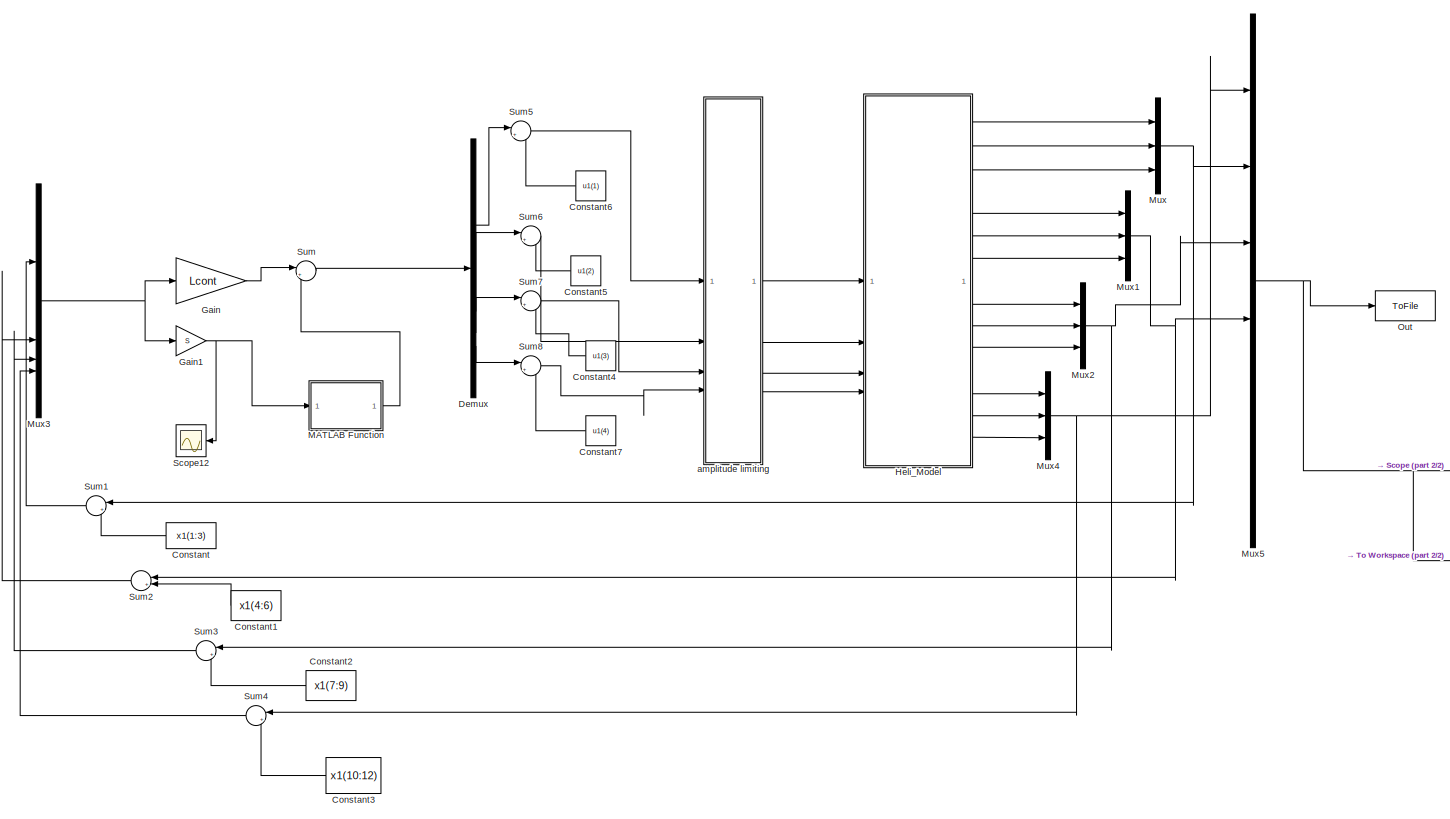
[diagram: root canvas - part 1/2, most of the canvas]
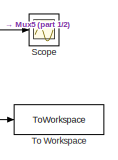
[diagram: root canvas - part 2/2, middle right region]
MODEL slx_30b38806697f
KIND model
CONFIG AbsTol = auto
CONFIG EnableMultiTasking = off
CONFIG FixedStep = auto
CONFIG MaxStep = auto
CONFIG MinStep = auto
CONFIG RelTol = 1e-3
CONFIG SampleTimeConstraint = Unconstrained
CONFIG SolverName = VariableStepAuto
CONFIG StartTime = 0.0
CONFIG StopTime = 80
BLOCK [Constant] Constant
  Value = x1(1:3)
BLOCK [Constant] Constant1
  Value = x1(4:6)
BLOCK [Constant] Constant2
  Value = x1(7:9)
BLOCK [Constant] Constant3
  Value = x1(10:12)
BLOCK [Constant] Constant4
  Value = u1(3)
BLOCK [Constant] Constant5
  Value = u1(2)
BLOCK [Constant] Constant6
  Value = u1(1)
BLOCK [Constant] Constant7
  Value = u1(4)
BLOCK [Demux] Demux
BLOCK [Gain] Gain
  Gain = Lcont
  Multiplication = Matrix(K*u)
BLOCK [Gain] Gain1
  Gain = S
  Multiplication = Matrix(K*u)
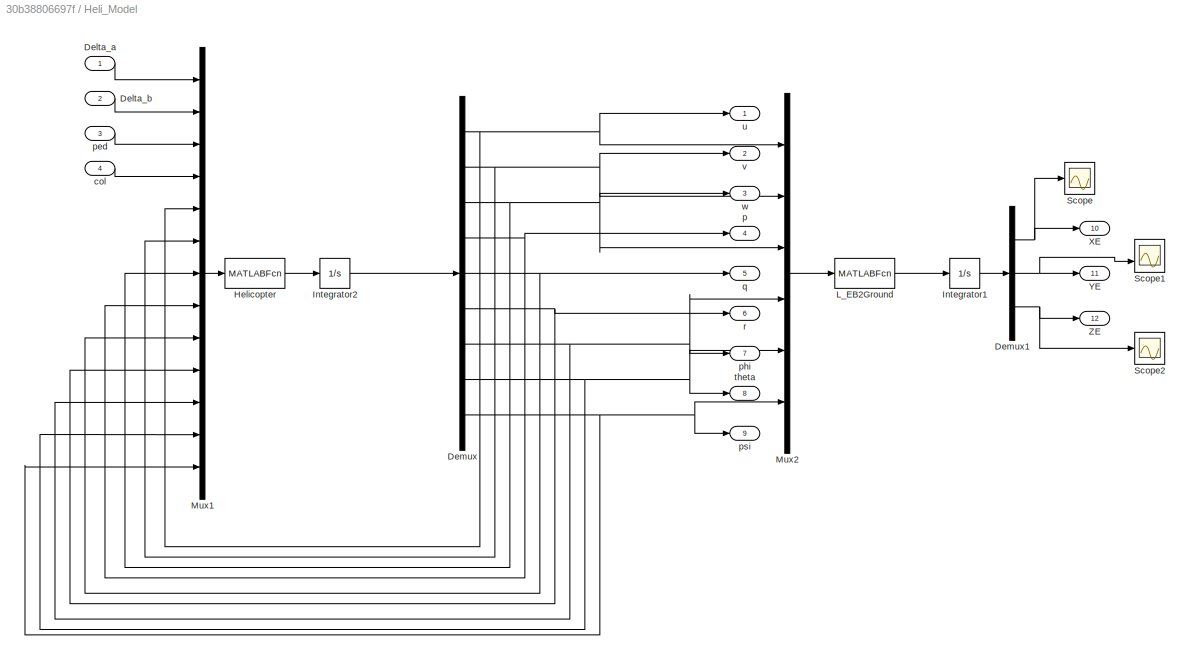
BLOCK [SubSystem] Heli_Model
BLOCK [Inport] Heli_Model/Delta_a
BLOCK [Inport] Heli_Model/Delta_b
  Port = 2
BLOCK [Demux] Heli_Model/Demux
  Outputs = 9
BLOCK [Demux] Heli_Model/Demux1
  Outputs = 3
BLOCK [MATLABFcn] Heli_Model/Helicopter
  MATLABFcn = F500Model
BLOCK [Integrator] Heli_Model/Integrator1
  InitialCondition = [0 0 0]
BLOCK [Integrator] Heli_Model/Integrator2
  InitialCondition = [0 0 0 0 0 0 0 0 0]
BLOCK [MATLABFcn] Heli_Model/L_EB2Ground
  MATLABFcn = L_EB2Ground
BLOCK [Mux] Heli_Model/Mux1
  DisplayOption = bar
  Inputs = 13
BLOCK [Mux] Heli_Model/Mux2
  DisplayOption = bar
  Inputs = 6
BLOCK [Scope] Heli_Model/Scope
  Floating = off
  NumInputPorts = 1
  ScopeSpecificationString = Simulink.scopes.TimeScopeBlockCfg('CurrentConfiguration', extmgr.ConfigurationSet(extmgr.Configuration('Core','General UI',true),extmgr.Configuration('Core','Source UI',true),extmgr.Configuration('Sources','WiredSimulink',true,'DataLoggingVariableName','ScopeData2','DataLoggingSaveFormat','StructureWithTime','DataLoggingLimitDataPoints',true,'DataLoggingDecimation','1','DataLoggingDecimateData',tr...<+1987ch>
BLOCK [Scope] Heli_Model/Scope1
  Floating = off
  NumInputPorts = 2
  ScopeSpecificationString = Simulink.scopes.TimeScopeBlockCfg('CurrentConfiguration', extmgr.ConfigurationSet(extmgr.Configuration('Core','General UI',true),extmgr.Configuration('Core','Source UI',true),extmgr.Configuration('Sources','WiredSimulink',true,'DataLoggingVariableName','ScopeData3','DataLoggingSaveFormat','StructureWithTime','DataLoggingDecimation','1','DataLoggingDecimateData',true),extmgr.Configuration('Visuals'...<+1662ch>
BLOCK [Scope] Heli_Model/Scope2
  Floating = off
  NumInputPorts = 1
  ScopeSpecificationString = Simulink.scopes.TimeScopeBlockCfg('CurrentConfiguration', extmgr.ConfigurationSet(extmgr.Configuration('Core','General UI',true),extmgr.Configuration('Core','Source UI',true),extmgr.Configuration('Sources','WiredSimulink',true,'DataLoggingVariableName','ScopeData4','DataLoggingSaveFormat','StructureWithTime','DataLoggingDecimation','1','DataLoggingDecimateData',true),extmgr.Configuration('Visuals'...<+1651ch>
BLOCK [Outport] Heli_Model/XE
  Port = 10
BLOCK [Outport] Heli_Model/YE
  Port = 11
BLOCK [Outport] Heli_Model/ZE
  Port = 12
BLOCK [Inport] Heli_Model/col
  Port = 4
BLOCK [Outport] Heli_Model/p
  Port = 4
BLOCK [Inport] Heli_Model/ped
  Port = 3
BLOCK [Outport] Heli_Model/phi
  Port = 7
BLOCK [Outport] Heli_Model/psi
  Port = 9
BLOCK [Outport] Heli_Model/q
  Port = 5
BLOCK [Outport] Heli_Model/r
  Port = 6
BLOCK [Outport] Heli_Model/theta
  Port = 8
BLOCK [Outport] Heli_Model/u
BLOCK [Outport] Heli_Model/v
  Port = 2
BLOCK [Outport] Heli_Model/w
  Port = 3
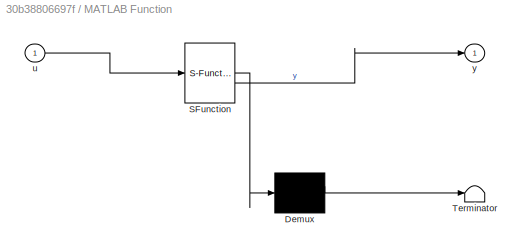
BLOCK [SubSystem] MATLAB Function
  ErrorFcn = Stateflow.Translate.translate
  LibrarySourceBlock = simulink/User-Defined\nFunctions/MATLAB Function
  NameLocation = top
  PermitHierarchicalResolution = ExplicitOnly
  SFBlockType = MATLAB Function
  TreatAsAtomicUnit = on
BLOCK [Demux] MATLAB Function/ Demux 
  Outputs = 1
BLOCK [S-Function] MATLAB Function/ SFunction 
  EnableBusSupport = on
  FunctionName = sf_sfun
  PortCounts = [1 2]
  SFcnIsStateOwnerBlock = off
  SFunctionDeploymentMode = off
  Tag = Stateflow S-Function 2
BLOCK [Terminator] MATLAB Function/ Terminator 
BLOCK [Inport] MATLAB Function/u
BLOCK [Outport] MATLAB Function/y
BLOCK [Mux] Mux
  DisplayOption = bar
  Inputs = 3
BLOCK [Mux] Mux1
  DisplayOption = bar
  Inputs = 3
BLOCK [Mux] Mux2
  DisplayOption = bar
  Inputs = 3
BLOCK [Mux] Mux3
  DisplayOption = bar
BLOCK [Mux] Mux4
  DisplayOption = bar
  Inputs = 3
BLOCK [Mux] Mux5
  DisplayOption = bar
  Inputs = 6
BLOCK [ToFile] Out
  Filename = allstates2level.mat
  MatrixName = AllStates
BLOCK [Scope] Scope
  Floating = off
  NumInputPorts = 1
  ScopeSpecificationString = Simulink.scopes.TimeScopeBlockCfg('CurrentConfiguration', extmgr.ConfigurationSet(extmgr.Configuration('Core','General UI',true),extmgr.Configuration('Core','Source UI',true),extmgr.Configuration('Sources','WiredSimulink',true,'DataLoggingVariableName','ScopeData1'),extmgr.Configuration('Visuals','Time Domain',true,'SerializedDisplays',{struct('MinYLimReal','-11.2716','MaxYLimReal','51.50431','YLa...<+1974ch>
BLOCK [Scope] Scope12
  Floating = off
  NumInputPorts = 1
  ScopeSpecificationString = Simulink.scopes.TimeScopeBlockCfg('CurrentConfiguration', extmgr.ConfigurationSet(extmgr.Configuration('Core','General UI',true),extmgr.Configuration('Core','Source UI',true),extmgr.Configuration('Sources','WiredSimulink',true,'DataLoggingVariableName','ScopeData5'),extmgr.Configuration('Visuals','Time Domain',true,'SerializedDisplays',{struct('MinYLimReal','-77638976483650153505077155125408356955...<+3023ch>
BLOCK [Sum] Sum
  Inputs = |++
BLOCK [Sum] Sum1
  Inputs = |+-
BLOCK [Sum] Sum2
  Inputs = |+-
BLOCK [Sum] Sum3
  Inputs = |+-
BLOCK [Sum] Sum4
  Inputs = |+-
BLOCK [Sum] Sum5
  Inputs = |++
BLOCK [Sum] Sum6
  Inputs = |++
BLOCK [Sum] Sum7
  Inputs = |++
BLOCK [Sum] Sum8
  Inputs = |++
BLOCK [ToWorkspace] To Workspace
  FixptAsFi = on
  MaxDataPoints = inf
  SampleTime = -1
  SaveFormat = Timeseries
  VariableName = Result1
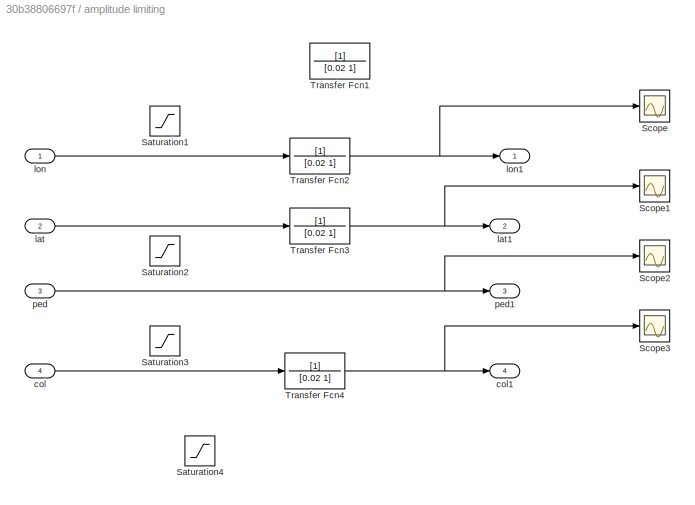
BLOCK [SubSystem] amplitude limiting
BLOCK [Saturate] amplitude limiting/Saturation1
  LowerLimit = -0.6
  UpperLimit = 0.6
BLOCK [Saturate] amplitude limiting/Saturation2
  LowerLimit = -0.6
  UpperLimit = 0.6
BLOCK [Saturate] amplitude limiting/Saturation3
  LowerLimit = -0.6
  UpperLimit = 0.6
BLOCK [Saturate] amplitude limiting/Saturation4
  LowerLimit = -10
  UpperLimit = 10
BLOCK [Scope] amplitude limiting/Scope
  Floating = off
  NumInputPorts = 1
  ScopeSpecificationString = Simulink.scopes.TimeScopeBlockCfg('CurrentConfiguration', extmgr.ConfigurationSet(extmgr.Configuration('Core','General UI',true),extmgr.Configuration('Core','Source UI',true),extmgr.Configuration('Sources','WiredSimulink',true,'DataLoggingVariableName','ScopeData18','DataLoggingSaveFormat','StructureWithTime','DataLoggingLimitDataPoints',true,'DataLoggingDecimation','1','DataLoggingDecimateData',t...<+2036ch>
BLOCK [Scope] amplitude limiting/Scope1
  Floating = off
  NumInputPorts = 1
  ScopeSpecificationString = Simulink.scopes.TimeScopeBlockCfg('CurrentConfiguration', extmgr.ConfigurationSet(extmgr.Configuration('Core','General UI',true),extmgr.Configuration('Core','Source UI',true),extmgr.Configuration('Sources','WiredSimulink',true,'DataLoggingVariableName','ScopeData19','DataLoggingSaveFormat','StructureWithTime','DataLoggingLimitDataPoints',true,'DataLoggingDecimation','1','DataLoggingDecimateData',t...<+2040ch>
BLOCK [Scope] amplitude limiting/Scope2
  Floating = off
  NumInputPorts = 1
  ScopeSpecificationString = Simulink.scopes.TimeScopeBlockCfg('CurrentConfiguration', extmgr.ConfigurationSet(extmgr.Configuration('Core','General UI',true),extmgr.Configuration('Core','Source UI',true),extmgr.Configuration('Sources','WiredSimulink',true,'DataLoggingVariableName','ScopeData20','DataLoggingSaveFormat','StructureWithTime','DataLoggingLimitDataPoints',true,'DataLoggingDecimation','1','DataLoggingDecimateData',t...<+2143ch>
BLOCK [Scope] amplitude limiting/Scope3
  Floating = off
  NumInputPorts = 1
  ScopeSpecificationString = Simulink.scopes.TimeScopeBlockCfg('CurrentConfiguration', extmgr.ConfigurationSet(extmgr.Configuration('Core','General UI',true),extmgr.Configuration('Core','Source UI',true),extmgr.Configuration('Sources','WiredSimulink',true,'DataLoggingVariableName','ScopeData21','DataLoggingSaveFormat','StructureWithTime','DataLoggingDecimation','1','DataLoggingDecimateData',true),extmgr.Configuration('Visuals...<+1977ch>
BLOCK [TransferFcn] amplitude limiting/Transfer Fcn1
  Denominator = [0.02 1]
BLOCK [TransferFcn] amplitude limiting/Transfer Fcn2
  Denominator = [0.02 1]
BLOCK [TransferFcn] amplitude limiting/Transfer Fcn3
  Denominator = [0.02 1]
BLOCK [TransferFcn] amplitude limiting/Transfer Fcn4
  Denominator = [0.02 1]
BLOCK [Inport] amplitude limiting/col
  Port = 4
BLOCK [Outport] amplitude limiting/col1
  Port = 4
BLOCK [Inport] amplitude limiting/lat
  Port = 2
BLOCK [Outport] amplitude limiting/lat1
  Port = 2
BLOCK [Inport] amplitude limiting/lon
BLOCK [Outport] amplitude limiting/lon1
BLOCK [Inport] amplitude limiting/ped
  Port = 3
BLOCK [Outport] amplitude limiting/ped1
  Port = 3
LINE Constant1:1 -> Sum2:2
LINE Constant2:1 -> Sum3:2
LINE Constant3:1 -> Sum4:2
LINE Constant4:1 -> Sum7:2
LINE Constant5:1 -> Sum6:2
LINE Constant6:1 -> Sum5:2
LINE Constant7:1 -> Sum8:2
LINE Constant:1 -> Sum1:2
LINE Demux:1 -> Sum5:1
LINE Demux:2 -> Sum6:1
LINE Demux:3 -> Sum7:1
LINE Demux:4 -> Sum8:1
NET Gain1:1 -> MATLAB Function:1, Scope12:1
LINE Gain:1 -> Sum:1
LINE Heli_Model/Delta_a:1 -> Heli_Model/Mux1:1
LINE Heli_Model/Delta_b:1 -> Heli_Model/Mux1:2
NET Heli_Model/Demux1:1 -> Heli_Model/Scope:1, Heli_Model/XE:1
NET Heli_Model/Demux1:2 -> Heli_Model/Scope1:2, Heli_Model/YE:1
NET Heli_Model/Demux1:3 -> Heli_Model/Scope2:1, Heli_Model/ZE:1
NET Heli_Model/Demux:1 -> Heli_Model/Mux1:5, Heli_Model/Mux2:1, Heli_Model/u:1
NET Heli_Model/Demux:2 -> Heli_Model/Mux1:6, Heli_Model/Mux2:2, Heli_Model/v:1
NET Heli_Model/Demux:3 -> Heli_Model/Mux1:7, Heli_Model/Mux2:3, Heli_Model/w:1
NET Heli_Model/Demux:4 -> Heli_Model/Mux1:8, Heli_Model/p:1
NET Heli_Model/Demux:5 -> Heli_Model/Mux1:9, Heli_Model/q:1
NET Heli_Model/Demux:6 -> Heli_Model/Mux1:10, Heli_Model/r:1
NET Heli_Model/Demux:7 -> Heli_Model/Mux1:11, Heli_Model/Mux2:4, Heli_Model/phi:1
NET Heli_Model/Demux:8 -> Heli_Model/Mux1:12, Heli_Model/Mux2:5, Heli_Model/theta:1
NET Heli_Model/Demux:9 -> Heli_Model/Mux1:13, Heli_Model/Mux2:6, Heli_Model/psi:1
LINE Heli_Model/Helicopter:1 -> Heli_Model/Integrator2:1
LINE Heli_Model/Integrator1:1 -> Heli_Model/Demux1:1
LINE Heli_Model/Integrator2:1 -> Heli_Model/Demux:1
LINE Heli_Model/L_EB2Ground:1 -> Heli_Model/Integrator1:1
LINE Heli_Model/Mux1:1 -> Heli_Model/Helicopter:1
LINE Heli_Model/Mux2:1 -> Heli_Model/L_EB2Ground:1
LINE Heli_Model/col:1 -> Heli_Model/Mux1:4
LINE Heli_Model/ped:1 -> Heli_Model/Mux1:3
LINE Heli_Model:1 -> Mux:1
LINE Heli_Model:10 -> Mux4:1
LINE Heli_Model:11 -> Mux4:2
LINE Heli_Model:12 -> Mux4:3
LINE Heli_Model:2 -> Mux:2
LINE Heli_Model:3 -> Mux:3
LINE Heli_Model:4 -> Mux1:1
LINE Heli_Model:5 -> Mux1:2
LINE Heli_Model:6 -> Mux1:3
LINE Heli_Model:7 -> Mux2:1
LINE Heli_Model:8 -> Mux2:2
LINE Heli_Model:9 -> Mux2:3
LINE MATLAB Function:1 -> Sum:2
NET Mux1:1 -> Mux5:4, Sum2:1
NET Mux2:1 -> Mux5:3, Sum3:1
NET Mux3:1 -> Gain1:1, Gain:1
NET Mux4:1 -> Mux5:1, Sum4:1
NET Mux5:1 -> Out:1, Scope:1, To Workspace:1
NET Mux:1 -> Mux5:2, Sum1:1
LINE Sum1:1 -> Mux3:1
LINE Sum2:1 -> Mux3:2
LINE Sum3:1 -> Mux3:3
LINE Sum4:1 -> Mux3:4
LINE Sum5:1 -> amplitude limiting:1
LINE Sum6:1 -> amplitude limiting:2
LINE Sum7:1 -> amplitude limiting:3
LINE Sum8:1 -> amplitude limiting:4
LINE Sum:1 -> Demux:1
NET amplitude limiting/Transfer Fcn2:1 -> amplitude limiting/Scope:1, amplitude limiting/lon1:1
NET amplitude limiting/Transfer Fcn3:1 -> amplitude limiting/Scope1:1, amplitude limiting/lat1:1
NET amplitude limiting/Transfer Fcn4:1 -> amplitude limiting/Scope3:1, amplitude limiting/col1:1
LINE amplitude limiting/col:1 -> amplitude limiting/Transfer Fcn4:1
LINE amplitude limiting/lat:1 -> amplitude limiting/Transfer Fcn3:1
LINE amplitude limiting/lon:1 -> amplitude limiting/Transfer Fcn2:1
NET amplitude limiting/ped:1 -> amplitude limiting/Scope2:1, amplitude limiting/ped1:1
LINE amplitude limiting:1 -> Heli_Model:1
LINE amplitude limiting:2 -> Heli_Model:2
LINE amplitude limiting:3 -> Heli_Model:3
LINE amplitude limiting:4 -> Heli_Model:4
note: NET lines group one-source signal fan-out (src -> all destinations, sorted); 1:1 wires keep LINE
CHART MATLAB Function states=1 transitions=1
  STATE_LABEL 'eML_blk_kernel()'
  STATE_LABEL 'SCRIPT:\nfunction y = fcn(u)\n\n Lam=[11.5782    0.0000   -0.0000   -0.0000;\n   -0.0000  -12.2181    0.0000   -0.0000;\n    0.0000   -0.0000    0.6730    0.6449;\n    0.0000   -0.0000   -0.0000   -0.4301];\n\nP = [0.0250         0         0         0;\n         0    0.0250         0         0;\n         0         0    0.0250         0;\n         0         0         0    0.0250;];\n\ny = -10*inv(Lam)*P*u/(norm...<+14ch>'
CHART  states=0 transitions=0
